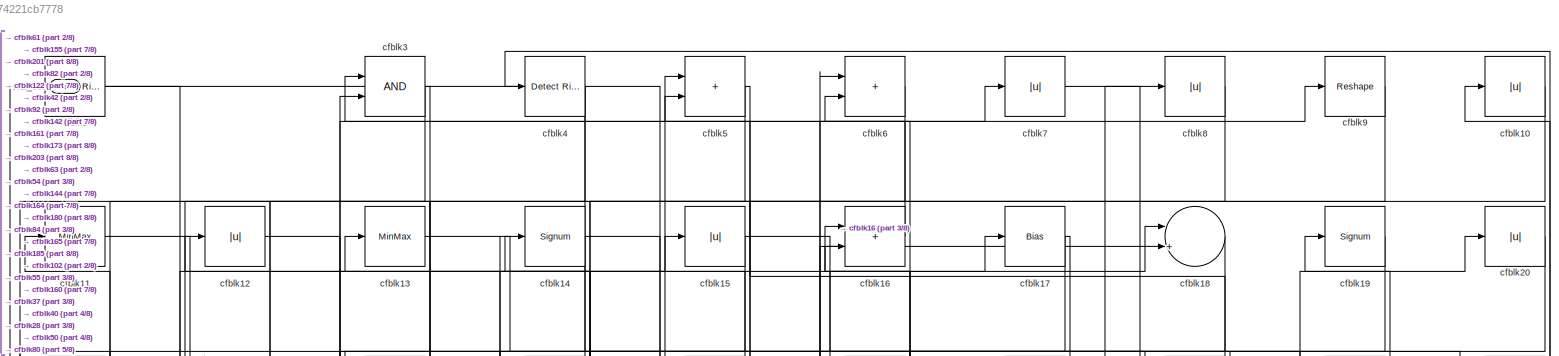
[diagram: root canvas - part 1/8, full width, top band]
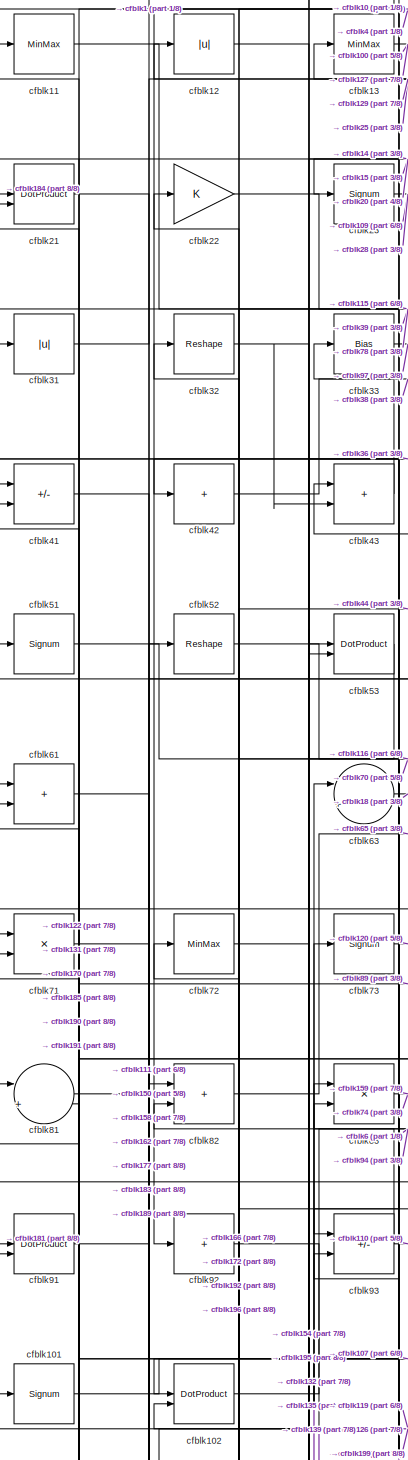
[diagram: root canvas - part 2/8, top left region]
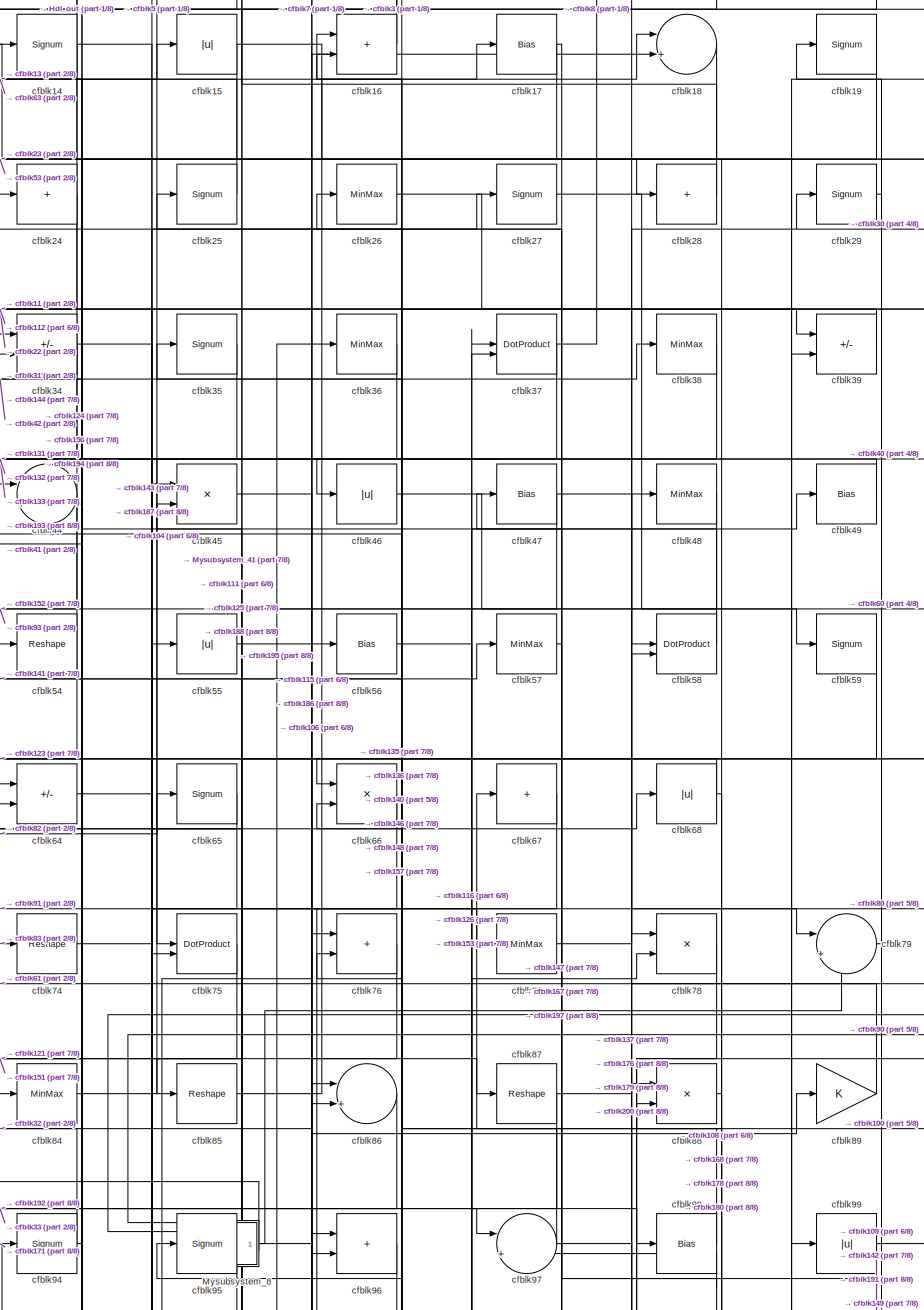
[diagram: root canvas - part 3/8, top center region]
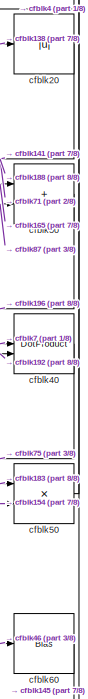
[diagram: root canvas - part 4/8, top right region]
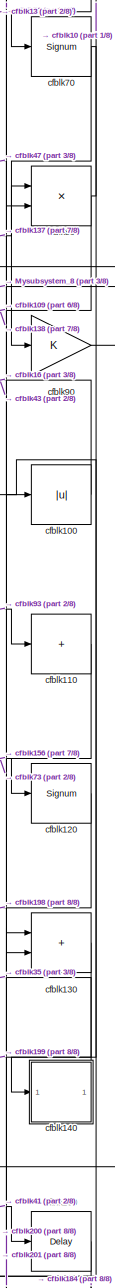
[diagram: root canvas - part 5/8, middle right region]
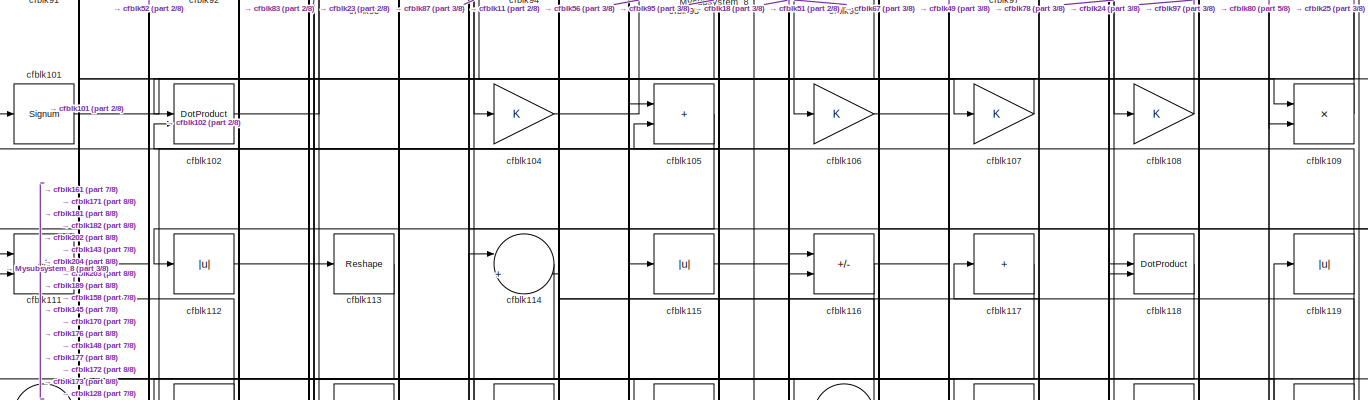
[diagram: root canvas - part 6/8, full width, middle band]
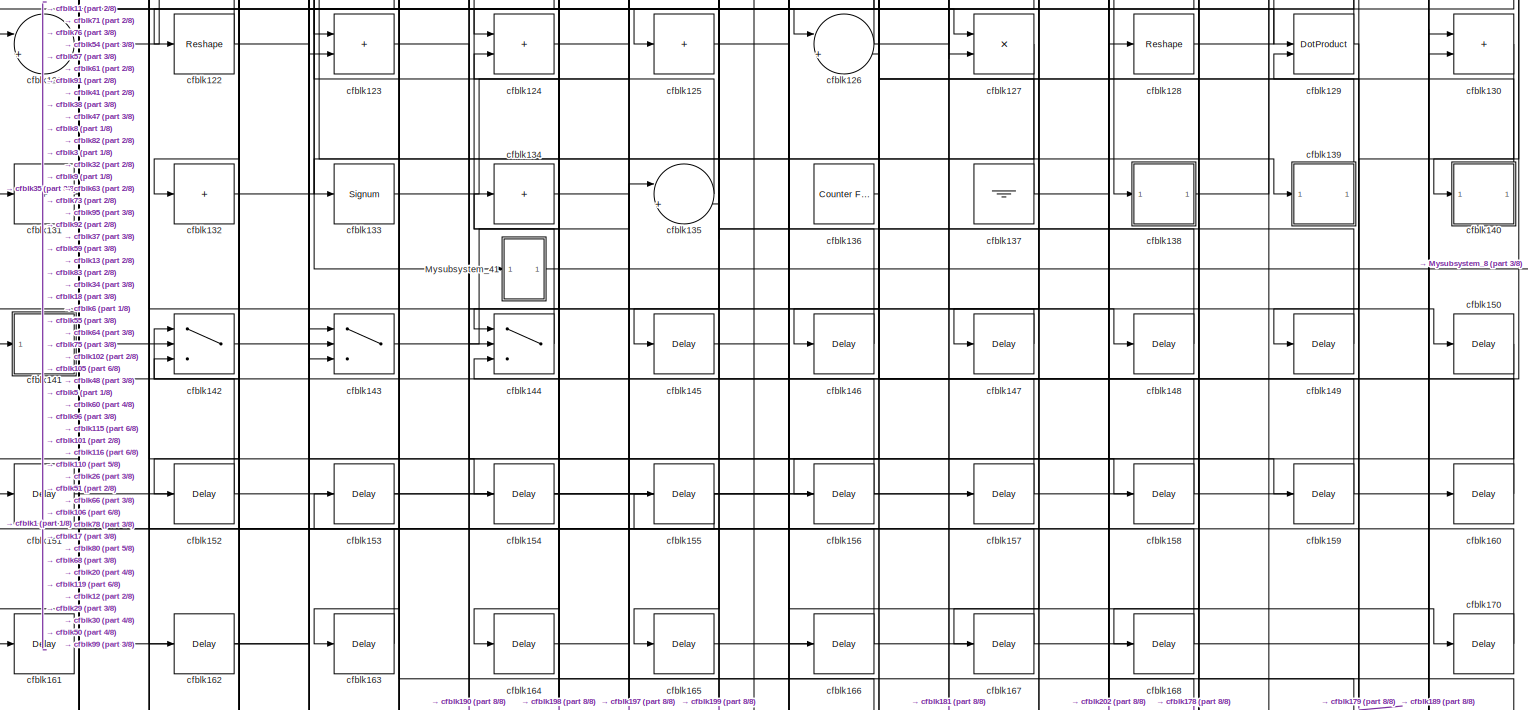
[diagram: root canvas - part 7/8, full width, bottom band]
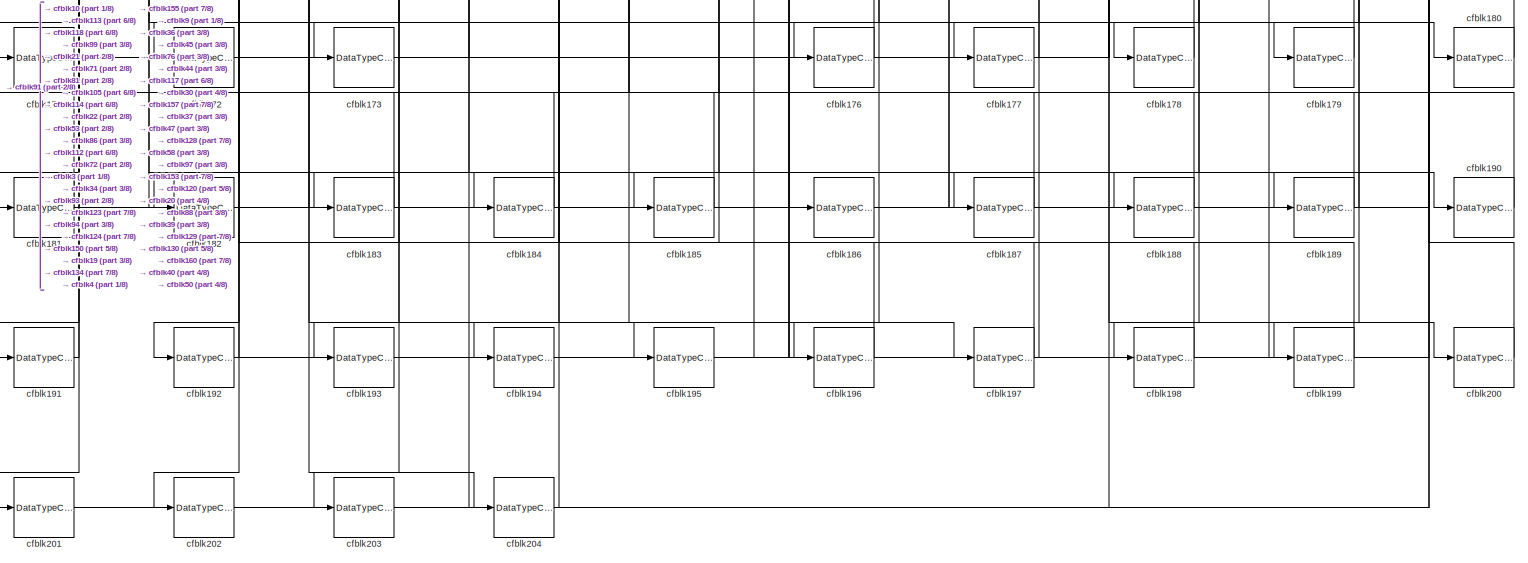
[diagram: root canvas - part 8/8, full width, bottom band]
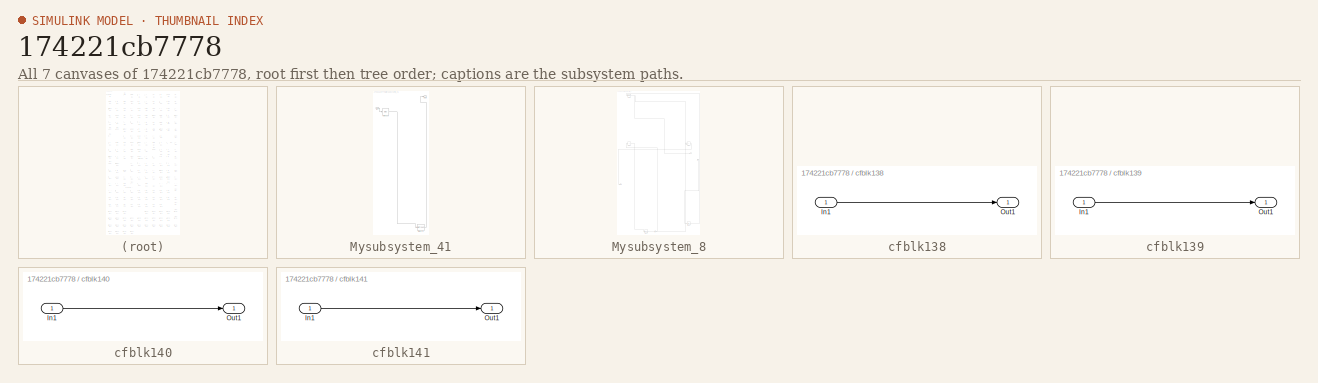
[diagram: thumbnail index - all 7 canvases of the model, root first then tree order]
MODEL slx_174221cb7778
KIND model
CONFIG AbsTol = auto
CONFIG EnableMultiTasking = off
CONFIG FixedStep = auto
CONFIG MaxStep = auto
CONFIG MinStep = auto
CONFIG RelTol = 1e-3
CONFIG SampleTimeConstraint = Unconstrained
CONFIG SolverName = VariableStepAuto
CONFIG StartTime = 0.0
CONFIG StopTime = 10.0
BLOCK [Outport] Hdl_out
  OutDataTypeStr = uint8
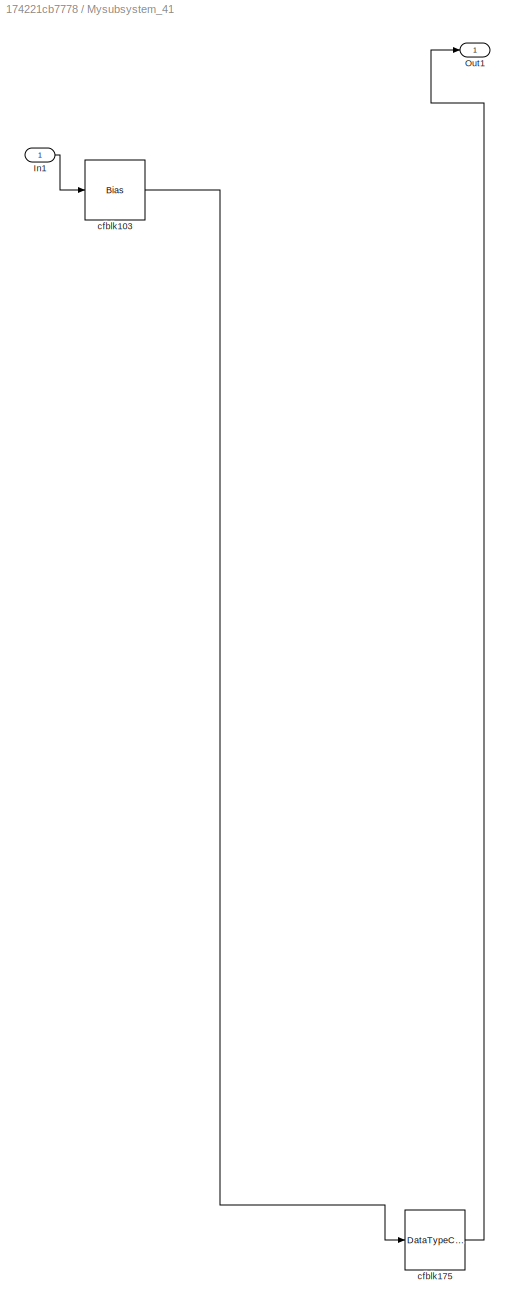
BLOCK [SubSystem] Mysubsystem_41
  RTWFcnName = Mysubsystem_41
  RTWFcnNameOpts = User specified
  RTWFileNameOpts = Use function name
  RTWSystemCode = Reusable function
  TreatAsAtomicUnit = on
BLOCK [Inport] Mysubsystem_41/In1
BLOCK [Outport] Mysubsystem_41/Out1
BLOCK [Bias] Mysubsystem_41/cfblk103
  Bias = 0.0
  SaturateOnIntegerOverflow = off
BLOCK [DataTypeConversion] Mysubsystem_41/cfblk175
  OutDataTypeStr = uint8
  RndMeth = Floor
  SaturateOnIntegerOverflow = off
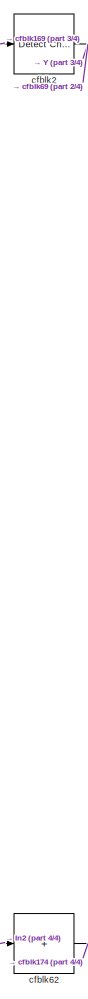
[diagram: Mysubsystem_8 - part 1/4, top left region]
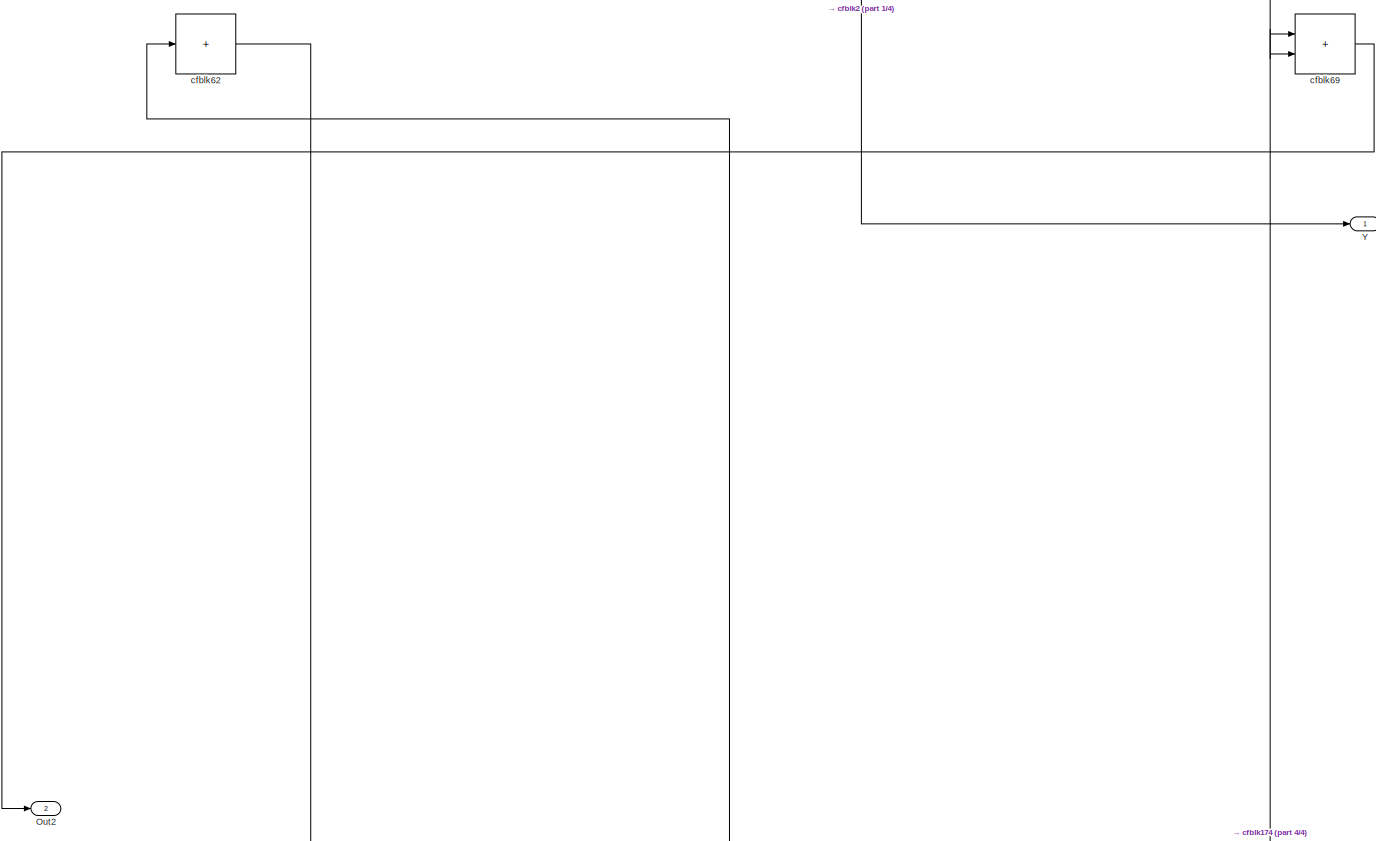
[diagram: Mysubsystem_8 - part 2/4, full width, middle band]
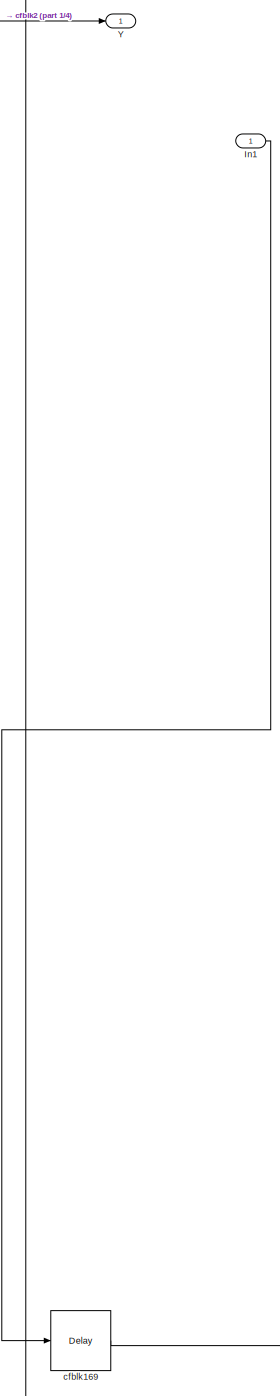
[diagram: Mysubsystem_8 - part 3/4, bottom right region]
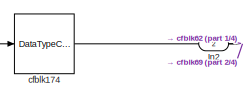
[diagram: Mysubsystem_8 - part 4/4, bottom center region]
BLOCK [SubSystem] Mysubsystem_8
  RTWFcnName = Mysubsystem_8
  RTWFcnNameOpts = User specified
  RTWFileNameOpts = Use function name
  RTWSystemCode = Reusable function
  TreatAsAtomicUnit = on
BLOCK [Inport] Mysubsystem_8/In1
BLOCK [Inport] Mysubsystem_8/In2
  Port = 2
BLOCK [Outport] Mysubsystem_8/Out2
  Port = 2
BLOCK [Outport] Mysubsystem_8/Y
BLOCK [Delay] Mysubsystem_8/cfblk169
  InputPortMap = u0
  SampleTime = 1
BLOCK [DataTypeConversion] Mysubsystem_8/cfblk174
  OutDataTypeStr = uint8
  RndMeth = Floor
  SaturateOnIntegerOverflow = off
BLOCK [Reference] Mysubsystem_8/cfblk2  REF=simulink/Logic and Bit
Operations/Detect
Change
  LibrarySourceBlock = hdlsllib/Logic and Bit\nOperations/Detect\nChange
  SourceBlock = simulink/Logic and Bit\nOperations/Detect\nChange
  SourceType = Detect Change
BLOCK [Sum] Mysubsystem_8/cfblk62
  IconShape = rectangular
  Inputs = +
BLOCK [Sum] Mysubsystem_8/cfblk69
  IconShape = rectangular
BLOCK [Reference] cfblk1  REF=hdlsllib/Logic and Bit
Operations/Detect Rise
Positive
  SourceBlock = hdlsllib/Logic and Bit\nOperations/Detect Rise\nPositive
  SourceType = Detect Rise Positive
BLOCK [Abs] cfblk10
  OutDataTypeStr = uint8
  SaturateOnIntegerOverflow = off
BLOCK [Abs] cfblk100
  OutDataTypeStr = uint8
  SaturateOnIntegerOverflow = off
BLOCK [Signum] cfblk101
BLOCK [DotProduct] cfblk102
  OutDataTypeStr = uint8
BLOCK [Gain] cfblk104
  OutDataTypeStr = uint8
BLOCK [Sum] cfblk105
  IconShape = rectangular
  OutDataTypeStr = uint8
BLOCK [Gain] cfblk106
  OutDataTypeStr = uint8
BLOCK [Gain] cfblk107
  OutDataTypeStr = uint8
BLOCK [Gain] cfblk108
  OutDataTypeStr = uint8
BLOCK [Product] cfblk109
  Inputs = */
  OutDataTypeStr = uint8
  RndMeth = Zero
  SaturateOnIntegerOverflow = on
BLOCK [MinMax] cfblk11
  OutDataTypeStr = uint8
BLOCK [Sum] cfblk110
  IconShape = rectangular
  Inputs = +
  OutDataTypeStr = uint8
BLOCK [Sum] cfblk111
  IconShape = rectangular
  Inputs = +-
  OutDataTypeStr = uint8
BLOCK [Abs] cfblk112
  OutDataTypeStr = uint8
  SaturateOnIntegerOverflow = off
BLOCK [Reshape] cfblk113
BLOCK [Sum] cfblk114
  Inputs = |++
  OutDataTypeStr = uint8
BLOCK [Abs] cfblk115
  OutDataTypeStr = uint8
  SaturateOnIntegerOverflow = off
BLOCK [Sum] cfblk116
  IconShape = rectangular
  Inputs = +-
  OutDataTypeStr = uint8
BLOCK [Sum] cfblk117
  IconShape = rectangular
  Inputs = +
  OutDataTypeStr = uint8
BLOCK [DotProduct] cfblk118
  OutDataTypeStr = uint8
BLOCK [Abs] cfblk119
  OutDataTypeStr = uint8
  SaturateOnIntegerOverflow = off
BLOCK [Abs] cfblk12
  OutDataTypeStr = uint8
  SaturateOnIntegerOverflow = off
BLOCK [Signum] cfblk120
BLOCK [Sum] cfblk121
  Inputs = |++
  OutDataTypeStr = uint8
BLOCK [Reshape] cfblk122
BLOCK [Sum] cfblk123
  IconShape = rectangular
  OutDataTypeStr = uint8
BLOCK [Sum] cfblk124
  IconShape = rectangular
  OutDataTypeStr = uint8
BLOCK [Sum] cfblk125
  IconShape = rectangular
  Inputs = +
  OutDataTypeStr = uint8
BLOCK [Sum] cfblk126
  Inputs = |++
  OutDataTypeStr = uint8
BLOCK [Product] cfblk127
  Inputs = */
  OutDataTypeStr = uint8
  RndMeth = Zero
  SaturateOnIntegerOverflow = on
BLOCK [Reshape] cfblk128
BLOCK [DotProduct] cfblk129
  OutDataTypeStr = uint8
BLOCK [MinMax] cfblk13
  OutDataTypeStr = uint8
BLOCK [Sum] cfblk130
  IconShape = rectangular
  OutDataTypeStr = uint8
BLOCK [Sum] cfblk131
  IconShape = rectangular
  Inputs = +
  OutDataTypeStr = uint8
BLOCK [Sum] cfblk132
  IconShape = rectangular
  Inputs = +
  OutDataTypeStr = uint8
BLOCK [Signum] cfblk133
BLOCK [Sum] cfblk134
  IconShape = rectangular
  Inputs = +
  OutDataTypeStr = uint8
BLOCK [Sum] cfblk135
  Inputs = |++
  OutDataTypeStr = uint8
BLOCK [Reference] cfblk136  REF=hdlsllib/Sources/Counter
Free-Running
  SourceBlock = hdlsllib/Sources/Counter\nFree-Running
  SourceType = Counter Free-Running
BLOCK [Ground] cfblk137
BLOCK [SubSystem] cfblk138
  LibrarySourceBlock = hdlsllib/Ports &\nSubsystems/Subsystem
BLOCK [Inport] cfblk138/In1
BLOCK [Outport] cfblk138/Out1
BLOCK [SubSystem] cfblk139
  LibrarySourceBlock = hdlsllib/Ports &\nSubsystems/Subsystem
BLOCK [Inport] cfblk139/In1
BLOCK [Outport] cfblk139/Out1
BLOCK [Signum] cfblk14
BLOCK [SubSystem] cfblk140
  LibrarySourceBlock = hdlsllib/Ports &\nSubsystems/Subsystem
BLOCK [Inport] cfblk140/In1
BLOCK [Outport] cfblk140/Out1
BLOCK [SubSystem] cfblk141
  LibrarySourceBlock = hdlsllib/Ports &\nSubsystems/Subsystem
BLOCK [Inport] cfblk141/In1
BLOCK [Outport] cfblk141/Out1
BLOCK [Switch] cfblk142
  InputSameDT = off
  OutDataTypeStr = uint8
  SaturateOnIntegerOverflow = off
BLOCK [Switch] cfblk143
  InputSameDT = off
  OutDataTypeStr = uint8
  SaturateOnIntegerOverflow = off
BLOCK [Switch] cfblk144
  InputSameDT = off
  OutDataTypeStr = uint8
  SaturateOnIntegerOverflow = off
BLOCK [Delay] cfblk145
  InputPortMap = u0
  SampleTime = 1
BLOCK [Delay] cfblk146
  InputPortMap = u0
  SampleTime = 1
BLOCK [Delay] cfblk147
  InputPortMap = u0
  SampleTime = 1
BLOCK [Delay] cfblk148
  InputPortMap = u0
  SampleTime = 1
BLOCK [Delay] cfblk149
  InputPortMap = u0
  SampleTime = 1
BLOCK [Abs] cfblk15
  OutDataTypeStr = uint8
  SaturateOnIntegerOverflow = off
BLOCK [Delay] cfblk150
  InputPortMap = u0
  SampleTime = 1
BLOCK [Delay] cfblk151
  InputPortMap = u0
  SampleTime = 1
BLOCK [Delay] cfblk152
  InputPortMap = u0
  SampleTime = 1
BLOCK [Delay] cfblk153
  InputPortMap = u0
  SampleTime = 1
BLOCK [Delay] cfblk154
  InputPortMap = u0
  SampleTime = 1
BLOCK [Delay] cfblk155
  InputPortMap = u0
  SampleTime = 1
BLOCK [Delay] cfblk156
  InputPortMap = u0
  SampleTime = 1
BLOCK [Delay] cfblk157
  InputPortMap = u0
  SampleTime = 1
BLOCK [Delay] cfblk158
  InputPortMap = u0
  SampleTime = 1
BLOCK [Delay] cfblk159
  InputPortMap = u0
  SampleTime = 1
BLOCK [Sum] cfblk16
  IconShape = rectangular
  OutDataTypeStr = uint8
BLOCK [Delay] cfblk160
  InputPortMap = u0
  SampleTime = 1
BLOCK [Delay] cfblk161
  InputPortMap = u0
  SampleTime = 1
BLOCK [Delay] cfblk162
  InputPortMap = u0
  SampleTime = 1
BLOCK [Delay] cfblk163
  InputPortMap = u0
  SampleTime = 1
BLOCK [Delay] cfblk164
  InputPortMap = u0
  SampleTime = 1
BLOCK [Delay] cfblk165
  InputPortMap = u0
  SampleTime = 1
BLOCK [Delay] cfblk166
  InputPortMap = u0
  SampleTime = 1
BLOCK [Delay] cfblk167
  InputPortMap = u0
  SampleTime = 1
BLOCK [Delay] cfblk168
  InputPortMap = u0
  SampleTime = 1
BLOCK [Bias] cfblk17
  Bias = 0.0
  SaturateOnIntegerOverflow = off
BLOCK [Delay] cfblk170
  InputPortMap = u0
  SampleTime = 1
BLOCK [DataTypeConversion] cfblk171
  OutDataTypeStr = uint8
  RndMeth = Floor
  SaturateOnIntegerOverflow = off
BLOCK [DataTypeConversion] cfblk172
  OutDataTypeStr = uint8
  RndMeth = Floor
  SaturateOnIntegerOverflow = off
BLOCK [DataTypeConversion] cfblk173
  OutDataTypeStr = uint8
  RndMeth = Floor
  SaturateOnIntegerOverflow = off
BLOCK [DataTypeConversion] cfblk176
  OutDataTypeStr = uint8
  RndMeth = Floor
  SaturateOnIntegerOverflow = off
BLOCK [DataTypeConversion] cfblk177
  OutDataTypeStr = uint8
  RndMeth = Floor
  SaturateOnIntegerOverflow = off
BLOCK [DataTypeConversion] cfblk178
  OutDataTypeStr = uint8
  RndMeth = Floor
  SaturateOnIntegerOverflow = off
BLOCK [DataTypeConversion] cfblk179
  OutDataTypeStr = uint8
  RndMeth = Floor
  SaturateOnIntegerOverflow = off
BLOCK [Sum] cfblk18
  Inputs = |++
  OutDataTypeStr = uint8
BLOCK [DataTypeConversion] cfblk180
  OutDataTypeStr = uint8
  RndMeth = Floor
  SaturateOnIntegerOverflow = off
BLOCK [DataTypeConversion] cfblk181
  OutDataTypeStr = uint8
  RndMeth = Floor
  SaturateOnIntegerOverflow = off
BLOCK [DataTypeConversion] cfblk182
  OutDataTypeStr = uint8
  RndMeth = Floor
  SaturateOnIntegerOverflow = off
BLOCK [DataTypeConversion] cfblk183
  OutDataTypeStr = uint8
  RndMeth = Floor
  SaturateOnIntegerOverflow = off
BLOCK [DataTypeConversion] cfblk184
  OutDataTypeStr = uint8
  RndMeth = Floor
  SaturateOnIntegerOverflow = off
BLOCK [DataTypeConversion] cfblk185
  OutDataTypeStr = uint8
  RndMeth = Floor
  SaturateOnIntegerOverflow = off
BLOCK [DataTypeConversion] cfblk186
  OutDataTypeStr = uint8
  RndMeth = Floor
  SaturateOnIntegerOverflow = off
BLOCK [DataTypeConversion] cfblk187
  OutDataTypeStr = uint8
  RndMeth = Floor
  SaturateOnIntegerOverflow = off
BLOCK [DataTypeConversion] cfblk188
  OutDataTypeStr = uint8
  RndMeth = Floor
  SaturateOnIntegerOverflow = off
BLOCK [DataTypeConversion] cfblk189
  OutDataTypeStr = uint8
  RndMeth = Floor
  SaturateOnIntegerOverflow = off
BLOCK [Signum] cfblk19
BLOCK [DataTypeConversion] cfblk190
  OutDataTypeStr = uint8
  RndMeth = Floor
  SaturateOnIntegerOverflow = off
BLOCK [DataTypeConversion] cfblk191
  OutDataTypeStr = uint8
  RndMeth = Floor
  SaturateOnIntegerOverflow = off
BLOCK [DataTypeConversion] cfblk192
  OutDataTypeStr = uint8
  RndMeth = Floor
  SaturateOnIntegerOverflow = off
BLOCK [DataTypeConversion] cfblk193
  OutDataTypeStr = uint8
  RndMeth = Floor
  SaturateOnIntegerOverflow = off
BLOCK [DataTypeConversion] cfblk194
  OutDataTypeStr = uint8
  RndMeth = Floor
  SaturateOnIntegerOverflow = off
BLOCK [DataTypeConversion] cfblk195
  OutDataTypeStr = uint8
  RndMeth = Floor
  SaturateOnIntegerOverflow = off
BLOCK [DataTypeConversion] cfblk196
  OutDataTypeStr = uint8
  RndMeth = Floor
  SaturateOnIntegerOverflow = off
BLOCK [DataTypeConversion] cfblk197
  OutDataTypeStr = uint8
  RndMeth = Floor
  SaturateOnIntegerOverflow = off
BLOCK [DataTypeConversion] cfblk198
  OutDataTypeStr = uint8
  RndMeth = Floor
  SaturateOnIntegerOverflow = off
BLOCK [DataTypeConversion] cfblk199
  OutDataTypeStr = uint8
  RndMeth = Floor
  SaturateOnIntegerOverflow = off
BLOCK [Abs] cfblk20
  OutDataTypeStr = uint8
  SaturateOnIntegerOverflow = off
BLOCK [DataTypeConversion] cfblk200
  OutDataTypeStr = uint8
  RndMeth = Floor
  SaturateOnIntegerOverflow = off
BLOCK [DataTypeConversion] cfblk201
  OutDataTypeStr = uint8
  RndMeth = Floor
  SaturateOnIntegerOverflow = off
BLOCK [DataTypeConversion] cfblk202
  OutDataTypeStr = uint8
  RndMeth = Floor
  SaturateOnIntegerOverflow = off
BLOCK [DataTypeConversion] cfblk203
  OutDataTypeStr = uint8
  RndMeth = Floor
  SaturateOnIntegerOverflow = off
BLOCK [DataTypeConversion] cfblk204
  OutDataTypeStr = uint8
  RndMeth = Floor
  SaturateOnIntegerOverflow = off
BLOCK [DotProduct] cfblk21
  OutDataTypeStr = uint8
BLOCK [Gain] cfblk22
  OutDataTypeStr = uint8
BLOCK [Signum] cfblk23
BLOCK [Sum] cfblk24
  IconShape = rectangular
  Inputs = +
  OutDataTypeStr = uint8
BLOCK [Signum] cfblk25
BLOCK [MinMax] cfblk26
  OutDataTypeStr = uint8
BLOCK [Signum] cfblk27
BLOCK [Sum] cfblk28
  IconShape = rectangular
  Inputs = +
  OutDataTypeStr = uint8
BLOCK [Signum] cfblk29
BLOCK [Logic] cfblk3
  AllPortsSameDT = off
  OutDataTypeStr = boolean
BLOCK [Sum] cfblk30
  IconShape = rectangular
  OutDataTypeStr = uint8
BLOCK [Abs] cfblk31
  OutDataTypeStr = uint8
  SaturateOnIntegerOverflow = off
BLOCK [Reshape] cfblk32
BLOCK [Bias] cfblk33
  Bias = 0.0
  SaturateOnIntegerOverflow = off
BLOCK [Sum] cfblk34
  IconShape = rectangular
  Inputs = +-
  OutDataTypeStr = uint8
BLOCK [Signum] cfblk35
BLOCK [MinMax] cfblk36
  OutDataTypeStr = uint8
BLOCK [DotProduct] cfblk37
  OutDataTypeStr = uint8
BLOCK [MinMax] cfblk38
  OutDataTypeStr = uint8
BLOCK [Sum] cfblk39
  IconShape = rectangular
  Inputs = +-
  OutDataTypeStr = uint8
BLOCK [Reference] cfblk4  REF=hdlsllib/Logic and Bit
Operations/Detect Rise
Nonnegative
  SourceBlock = hdlsllib/Logic and Bit\nOperations/Detect Rise\nNonnegative
  SourceType = Detect Rise Nonnegative
BLOCK [DotProduct] cfblk40
  OutDataTypeStr = uint8
BLOCK [Sum] cfblk41
  IconShape = rectangular
  Inputs = +-
  OutDataTypeStr = uint8
BLOCK [Sum] cfblk42
  IconShape = rectangular
  Inputs = +
  OutDataTypeStr = uint8
BLOCK [Sum] cfblk43
  IconShape = rectangular
  OutDataTypeStr = uint8
BLOCK [Sum] cfblk44
  Inputs = |++
  OutDataTypeStr = uint8
BLOCK [Product] cfblk45
  Inputs = */
  OutDataTypeStr = uint8
  RndMeth = Zero
  SaturateOnIntegerOverflow = on
BLOCK [Abs] cfblk46
  OutDataTypeStr = uint8
  SaturateOnIntegerOverflow = off
BLOCK [Bias] cfblk47
  Bias = 0.0
  SaturateOnIntegerOverflow = off
BLOCK [MinMax] cfblk48
  OutDataTypeStr = uint8
BLOCK [Bias] cfblk49
  Bias = 0.0
  SaturateOnIntegerOverflow = off
BLOCK [Sum] cfblk5
  IconShape = rectangular
  OutDataTypeStr = uint8
BLOCK [Product] cfblk50
  Inputs = */
  OutDataTypeStr = uint8
  RndMeth = Zero
  SaturateOnIntegerOverflow = on
BLOCK [Signum] cfblk51
BLOCK [Reshape] cfblk52
BLOCK [DotProduct] cfblk53
  OutDataTypeStr = uint8
BLOCK [Reshape] cfblk54
BLOCK [Abs] cfblk55
  OutDataTypeStr = uint8
  SaturateOnIntegerOverflow = off
BLOCK [Bias] cfblk56
  Bias = 0.0
  SaturateOnIntegerOverflow = off
BLOCK [MinMax] cfblk57
  OutDataTypeStr = uint8
BLOCK [DotProduct] cfblk58
  OutDataTypeStr = uint8
BLOCK [Signum] cfblk59
BLOCK [Sum] cfblk6
  IconShape = rectangular
  OutDataTypeStr = uint8
BLOCK [Bias] cfblk60
  Bias = 0.0
  SaturateOnIntegerOverflow = off
BLOCK [Sum] cfblk61
  IconShape = rectangular
  OutDataTypeStr = uint8
BLOCK [Sum] cfblk63
  Inputs = |++
  OutDataTypeStr = uint8
BLOCK [Sum] cfblk64
  IconShape = rectangular
  Inputs = +-
  OutDataTypeStr = uint8
BLOCK [Signum] cfblk65
BLOCK [Product] cfblk66
  Inputs = */
  OutDataTypeStr = uint8
  RndMeth = Zero
  SaturateOnIntegerOverflow = on
BLOCK [Sum] cfblk67
  IconShape = rectangular
  Inputs = +
  OutDataTypeStr = uint8
BLOCK [Abs] cfblk68
  OutDataTypeStr = uint8
  SaturateOnIntegerOverflow = off
BLOCK [Abs] cfblk7
  OutDataTypeStr = uint8
  SaturateOnIntegerOverflow = off
BLOCK [Signum] cfblk70
BLOCK [Product] cfblk71
  Inputs = */
  OutDataTypeStr = uint8
  RndMeth = Zero
  SaturateOnIntegerOverflow = on
BLOCK [MinMax] cfblk72
  OutDataTypeStr = uint8
BLOCK [Signum] cfblk73
BLOCK [Reshape] cfblk74
BLOCK [DotProduct] cfblk75
  OutDataTypeStr = uint8
BLOCK [Sum] cfblk76
  IconShape = rectangular
  OutDataTypeStr = uint8
BLOCK [MinMax] cfblk77
  OutDataTypeStr = uint8
BLOCK [Product] cfblk78
  Inputs = */
  OutDataTypeStr = uint8
  RndMeth = Zero
  SaturateOnIntegerOverflow = on
BLOCK [Sum] cfblk79
  Inputs = |++
  OutDataTypeStr = uint8
BLOCK [Abs] cfblk8
  OutDataTypeStr = uint8
  SaturateOnIntegerOverflow = off
BLOCK [Product] cfblk80
  Inputs = */
  OutDataTypeStr = uint8
  RndMeth = Zero
  SaturateOnIntegerOverflow = on
BLOCK [Sum] cfblk81
  Inputs = |++
  OutDataTypeStr = uint8
BLOCK [Sum] cfblk82
  IconShape = rectangular
  OutDataTypeStr = uint8
BLOCK [Product] cfblk83
  Inputs = */
  OutDataTypeStr = uint8
  RndMeth = Zero
  SaturateOnIntegerOverflow = on
BLOCK [MinMax] cfblk84
  OutDataTypeStr = uint8
BLOCK [Reshape] cfblk85
BLOCK [Sum] cfblk86
  Inputs = |++
  OutDataTypeStr = uint8
BLOCK [Reshape] cfblk87
BLOCK [Product] cfblk88
  Inputs = */
  OutDataTypeStr = uint8
  RndMeth = Zero
  SaturateOnIntegerOverflow = on
BLOCK [Gain] cfblk89
  OutDataTypeStr = uint8
BLOCK [Reshape] cfblk9
BLOCK [Gain] cfblk90
  OutDataTypeStr = uint8
BLOCK [DotProduct] cfblk91
  OutDataTypeStr = uint8
BLOCK [Sum] cfblk92
  IconShape = rectangular
  Inputs = +
  OutDataTypeStr = uint8
BLOCK [Sum] cfblk93
  IconShape = rectangular
  Inputs = +-
  OutDataTypeStr = uint8
BLOCK [Signum] cfblk94
BLOCK [Signum] cfblk95
BLOCK [Sum] cfblk96
  IconShape = rectangular
  OutDataTypeStr = uint8
BLOCK [Sum] cfblk97
  Inputs = |++
  OutDataTypeStr = uint8
BLOCK [Bias] cfblk98
  Bias = 0.0
  SaturateOnIntegerOverflow = off
BLOCK [Abs] cfblk99
  OutDataTypeStr = uint8
  SaturateOnIntegerOverflow = off
LINE Mysubsystem_41/In1:1 -> Mysubsystem_41/cfblk103:1
LINE Mysubsystem_41/cfblk103:1 -> Mysubsystem_41/cfblk175:1
LINE Mysubsystem_41/cfblk175:1 -> Mysubsystem_41/Out1:1
LINE Mysubsystem_41:1 -> Mysubsystem_8:2
LINE Mysubsystem_8/In1:1 -> Mysubsystem_8/cfblk169:1
LINE Mysubsystem_8/In2:1 -> Mysubsystem_8/cfblk62:1
LINE Mysubsystem_8/cfblk169:1 -> Mysubsystem_8/cfblk2:1
LINE Mysubsystem_8/cfblk174:1 -> Mysubsystem_8/cfblk69:1
NET Mysubsystem_8/cfblk2:1 -> Mysubsystem_8/Y:1, Mysubsystem_8/cfblk69:2
LINE Mysubsystem_8/cfblk62:1 -> Mysubsystem_8/cfblk174:1
LINE Mysubsystem_8/cfblk69:1 -> Mysubsystem_8/Out2:1
LINE Mysubsystem_8:1 -> cfblk79:2
LINE Mysubsystem_8:2 -> cfblk111:2
NET cfblk100:1 -> cfblk16:2, cfblk43:1
LINE cfblk101:1 -> cfblk107:1
LINE cfblk102:1 -> cfblk6:1
LINE cfblk104:1 -> cfblk56:1
LINE cfblk105:1 -> cfblk182:1
LINE cfblk106:1 -> cfblk148:1
LINE cfblk107:1 -> cfblk102:1
NET cfblk108:1 -> cfblk24:1, cfblk97:2
LINE cfblk109:1 -> cfblk25:1
NET cfblk10:1 -> cfblk201:1, cfblk63:2
LINE cfblk110:1 -> cfblk156:1
LINE cfblk111:1 -> cfblk52:1
LINE cfblk112:1 -> cfblk204:1
LINE cfblk113:1 -> cfblk181:1
LINE cfblk114:1 -> cfblk202:1
NET cfblk115:1 -> cfblk170:1, cfblk18:2
NET cfblk116:1 -> cfblk143:3, cfblk49:1
LINE cfblk117:1 -> cfblk176:1
LINE cfblk118:1 -> cfblk171:1
NET cfblk119:1 -> cfblk161:1, cfblk83:1
NET cfblk11:1 -> cfblk115:1, cfblk78:1
LINE cfblk120:1 -> cfblk198:1
LINE cfblk121:1 -> cfblk96:2
NET cfblk122:1 -> cfblk129:1, cfblk41:1
LINE cfblk123:1 -> cfblk190:1
LINE cfblk124:1 -> cfblk75:2
LINE cfblk125:1 -> cfblk166:1
NET cfblk126:1 -> cfblk101:1, cfblk78:2
LINE cfblk127:1 -> cfblk163:1
LINE cfblk128:1 -> cfblk119:1
NET cfblk129:1 -> cfblk12:1, cfblk179:1
LINE cfblk12:1 -> cfblk154:1
LINE cfblk130:1 -> cfblk199:1
LINE cfblk131:1 -> cfblk71:1
LINE cfblk132:1 -> cfblk63:1
LINE cfblk133:1 -> cfblk55:1
LINE cfblk134:1 -> cfblk197:1
LINE cfblk135:1 -> cfblk73:1
LINE cfblk136:1 -> cfblk26:1
NET cfblk137:1 -> cfblk80:1, cfblk95:1
LINE cfblk138/In1:1 -> cfblk138/Out1:1
LINE cfblk138:1 -> cfblk20:1
LINE cfblk139/In1:1 -> cfblk139/Out1:1
LINE cfblk139:1 -> cfblk51:1
NET cfblk13:1 -> cfblk100:1, cfblk127:2
LINE cfblk140/In1:1 -> cfblk140/Out1:1
LINE cfblk140:1 -> cfblk35:1
LINE cfblk141/In1:1 -> cfblk141/Out1:1
NET cfblk141:1 -> cfblk54:1, cfblk57:1
LINE cfblk142:1 -> cfblk9:1
LINE cfblk143:1 -> cfblk68:1
LINE cfblk144:1 -> cfblk34:1
LINE cfblk145:1 -> cfblk116:2
LINE cfblk146:1 -> cfblk64:1
LINE cfblk147:1 -> cfblk144:2
LINE cfblk148:1 -> cfblk66:2
LINE cfblk149:1 -> cfblk102:2
NET cfblk14:1 -> cfblk23:1, cfblk77:1
LINE cfblk150:1 -> cfblk184:1
LINE cfblk151:1 -> cfblk96:1
LINE cfblk152:1 -> cfblk121:2
LINE cfblk153:1 -> cfblk37:1
LINE cfblk154:1 -> cfblk50:2
LINE cfblk155:1 -> cfblk1:1
LINE cfblk156:1 -> cfblk34:2
LINE cfblk157:1 -> cfblk76:2
LINE cfblk158:1 -> cfblk105:2
LINE cfblk159:1 -> cfblk126:2
NET cfblk15:1 -> cfblk53:2, cfblk99:1
LINE cfblk160:1 -> cfblk6:2
LINE cfblk161:1 -> cfblk3:2
LINE cfblk162:1 -> cfblk143:1
LINE cfblk163:1 -> cfblk142:3
LINE cfblk164:1 -> cfblk135:1
LINE cfblk165:1 -> cfblk30:1
LINE cfblk166:1 -> cfblk82:2
LINE cfblk167:1 -> cfblk142:2
LINE cfblk168:1 -> cfblk144:3
LINE cfblk16:1 -> cfblk3:1
LINE cfblk170:1 -> cfblk11:1
LINE cfblk171:1 -> cfblk94:1
LINE cfblk172:1 -> cfblk118:1
LINE cfblk173:1 -> cfblk118:2
NET cfblk176:1 -> cfblk44:1, cfblk58:2
LINE cfblk177:1 -> cfblk117:1
LINE cfblk178:1 -> cfblk153:1
LINE cfblk179:1 -> cfblk88:1
NET cfblk17:1 -> cfblk146:1, cfblk147:1
LINE cfblk180:1 -> cfblk88:2
NET cfblk181:1 -> cfblk157:1, cfblk187:1, cfblk91:1
LINE cfblk182:1 -> cfblk113:1
NET cfblk183:1 -> cfblk50:1, cfblk53:1
LINE cfblk184:1 -> cfblk21:1
LINE cfblk185:1 -> cfblk21:2
LINE cfblk186:1 -> cfblk37:2
LINE cfblk187:1 -> cfblk45:1
LINE cfblk188:1 -> cfblk45:2
NET cfblk189:1 -> cfblk105:1, cfblk129:2
LINE cfblk18:1 -> cfblk124:1
LINE cfblk190:1 -> cfblk81:1
LINE cfblk191:1 -> cfblk81:2
NET cfblk192:1 -> cfblk22:1, cfblk39:2, cfblk40:2
LINE cfblk193:1 -> cfblk86:1
LINE cfblk194:1 -> cfblk86:2
NET cfblk195:1 -> cfblk36:1, cfblk76:1
LINE cfblk196:1 -> cfblk72:1
NET cfblk197:1 -> cfblk124:2, cfblk47:1
LINE cfblk198:1 -> cfblk134:1
NET cfblk199:1 -> cfblk155:1, cfblk93:2
NET cfblk19:1 -> cfblk194:1, cfblk84:1
LINE cfblk1:1 -> cfblk82:1
LINE cfblk200:1 -> cfblk130:1
LINE cfblk201:1 -> cfblk130:2
NET cfblk202:1 -> cfblk128:1, cfblk160:1
LINE cfblk203:1 -> cfblk114:1
LINE cfblk204:1 -> cfblk114:2
NET cfblk20:1 -> cfblk141:1, cfblk188:1, cfblk71:2
LINE cfblk21:1 -> cfblk183:1
LINE cfblk22:1 -> cfblk39:1
NET cfblk23:1 -> cfblk109:1, cfblk28:1
LINE cfblk24:1 -> cfblk112:1
LINE cfblk25:1 -> cfblk13:1
LINE cfblk26:1 -> cfblk58:1
LINE cfblk27:1 -> cfblk59:1
LINE cfblk28:1 -> cfblk5:2
LINE cfblk29:1 -> cfblk149:1
LINE cfblk30:1 -> cfblk196:1
LINE cfblk31:1 -> cfblk15:1
NET cfblk32:1 -> cfblk127:1, cfblk43:2
LINE cfblk33:1 -> cfblk97:1
NET cfblk34:1 -> cfblk143:2, cfblk193:1, cfblk79:1
LINE cfblk35:1 -> cfblk131:1
LINE cfblk36:1 -> cfblk41:2
NET cfblk37:1 -> cfblk133:1, cfblk8:1
LINE cfblk38:1 -> cfblk132:1
LINE cfblk39:1 -> cfblk31:1
NET cfblk3:1 -> cfblk203:1, cfblk61:2
LINE cfblk40:1 -> cfblk75:1
LINE cfblk41:1 -> cfblk150:1
LINE cfblk42:1 -> cfblk38:1
LINE cfblk43:1 -> cfblk33:1
LINE cfblk44:1 -> cfblk93:1
LINE cfblk45:1 -> cfblk186:1
LINE cfblk46:1 -> cfblk60:1
NET cfblk47:1 -> cfblk152:1, cfblk80:2
LINE cfblk48:1 -> cfblk125:1
LINE cfblk49:1 -> cfblk46:1
NET cfblk4:1 -> cfblk173:1, cfblk180:1, cfblk42:1, cfblk92:1
LINE cfblk50:1 -> cfblk4:1
LINE cfblk51:1 -> cfblk116:1
LINE cfblk52:1 -> cfblk70:1
LINE cfblk53:1 -> cfblk172:1
NET cfblk54:1 -> Hdl_out:1, cfblk123:2
LINE cfblk55:1 -> cfblk7:1
LINE cfblk56:1 -> cfblk98:1
LINE cfblk57:1 -> cfblk167:1
LINE cfblk58:1 -> cfblk14:1
LINE cfblk59:1 -> cfblk123:1
NET cfblk5:1 -> cfblk164:1, cfblk165:1
LINE cfblk60:1 -> cfblk145:1
LINE cfblk61:1 -> cfblk162:1
LINE cfblk63:1 -> cfblk18:1
LINE cfblk64:1 -> cfblk126:1
NET cfblk65:1 -> cfblk64:2, cfblk91:2
LINE cfblk66:1 -> cfblk85:1
LINE cfblk67:1 -> cfblk106:1
NET cfblk68:1 -> cfblk168:1, cfblk66:1
LINE cfblk6:1 -> cfblk144:1
NET cfblk70:1 -> cfblk140:1, cfblk90:1
LINE cfblk71:1 -> cfblk177:1
LINE cfblk72:1 -> cfblk195:1
LINE cfblk73:1 -> cfblk120:1
LINE cfblk74:1 -> cfblk27:1
LINE cfblk75:1 -> cfblk151:1
LINE cfblk76:1 -> cfblk121:1
LINE cfblk77:1 -> cfblk48:1
LINE cfblk78:1 -> cfblk108:1
LINE cfblk79:1 -> cfblk19:1
LINE cfblk7:1 -> cfblk40:1
NET cfblk80:1 -> cfblk109:2, cfblk10:1, cfblk138:1
LINE cfblk81:1 -> cfblk189:1
LINE cfblk82:1 -> cfblk65:1
NET cfblk83:1 -> cfblk159:1, cfblk74:1
LINE cfblk84:1 -> cfblk5:1
NET cfblk85:1 -> cfblk17:1, cfblk87:1
LINE cfblk86:1 -> cfblk192:1
NET cfblk87:1 -> cfblk104:1, cfblk29:1, cfblk30:2
LINE cfblk88:1 -> cfblk178:1
LINE cfblk89:1 -> cfblk61:1
LINE cfblk8:1 -> cfblk122:1
LINE cfblk90:1 -> Mysubsystem_8:1
LINE cfblk91:1 -> cfblk158:1
LINE cfblk92:1 -> cfblk139:1
NET cfblk93:1 -> cfblk110:1, cfblk83:2
NET cfblk94:1 -> cfblk32:1, cfblk44:2
NET cfblk95:1 -> Mysubsystem_41:1, cfblk111:1, cfblk89:1
LINE cfblk96:1 -> cfblk135:2
NET cfblk97:1 -> cfblk16:1, cfblk200:1
LINE cfblk98:1 -> cfblk67:1
NET cfblk99:1 -> cfblk142:1, cfblk191:1
LINE cfblk9:1 -> cfblk185:1
note: NET lines group one-source signal fan-out (src -> all destinations, sorted); 1:1 wires keep LINE
